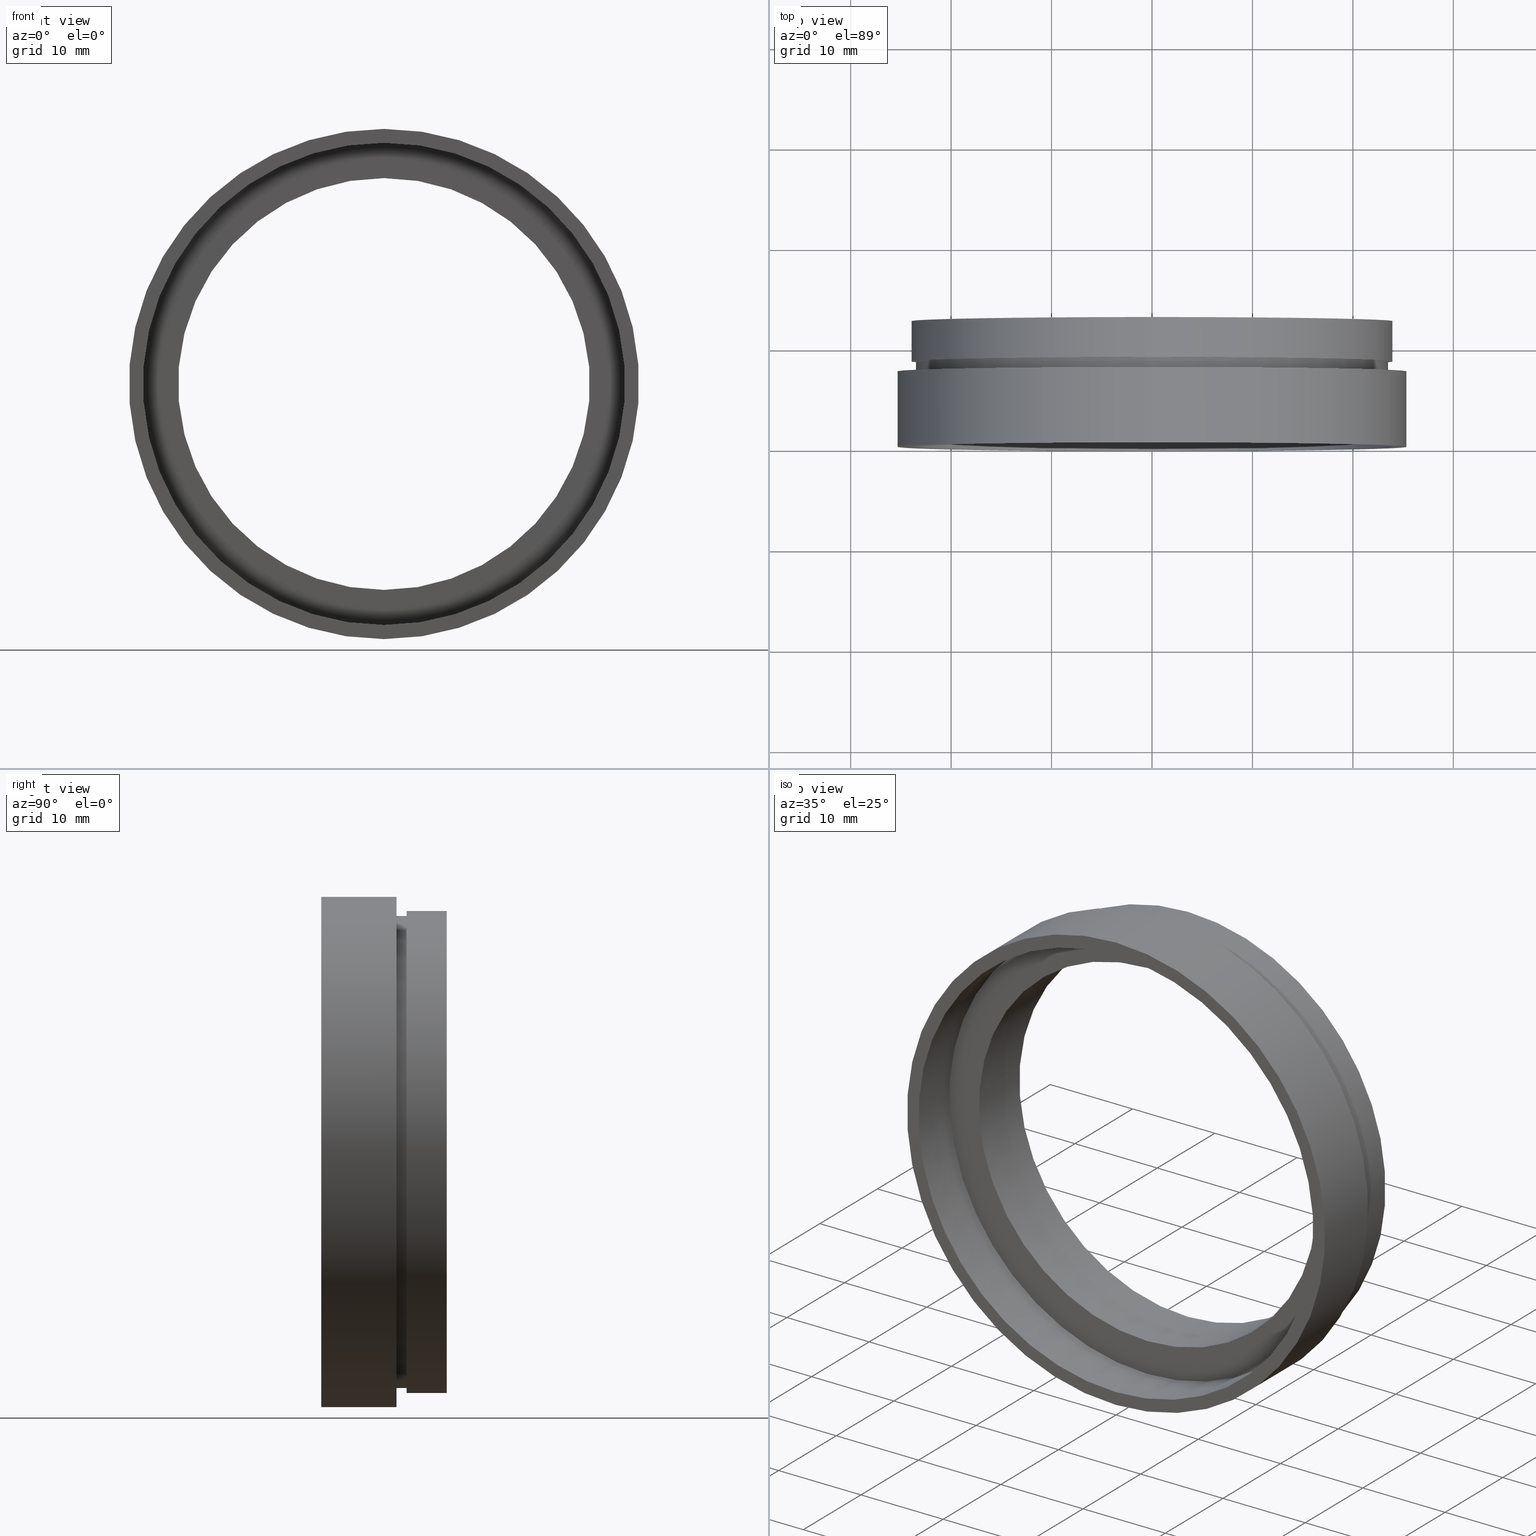
[diagram: canonical four-view strip — front | top / right | iso, engineering-drawing reading convention]
A machine part, canonical four-view strip (front | top / right | iso — engineering-drawing reading convention). The complete STEP part file that produces these views, byte-faithful:
ISO-10303-21;
HEADER;
FILE_DESCRIPTION (( 'STEP AP214' ),
    '1' );
FILE_NAME ('503016.STEP',
    '2019-09-05T01:53:03',
    ( '' ),
    ( '' ),
    'SwSTEP 2.0',
    'SolidWorks 2016',
    '' );
FILE_SCHEMA (( 'AUTOMOTIVE_DESIGN' ));
ENDSEC;

DATA;
#1 = AXIS2_PLACEMENT_3D ( 'NONE', #484, #488, #196 ) ;
#2 = VECTOR ( 'NONE', #34, 1000.000000000000000 ) ;
#3 = DIRECTION ( 'NONE',  ( -0.0000000000000000000, 1.000000000000000000, -0.0000000000000000000 ) ) ;
#4 = ORIENTED_EDGE ( 'NONE', *, *, #209, .T. ) ;
#5 = EDGE_CURVE ( 'NONE', #333, #324, #274, .T. ) ;
#6 = VERTEX_POINT ( 'NONE', #571 ) ;
#7 = UNCERTAINTY_MEASURE_WITH_UNIT (LENGTH_MEASURE( 1.000000000000000100E-005 ), #582, 'distance_accuracy_value', 'NONE');
#8 = CARTESIAN_POINT ( 'NONE',  ( 0.0000000000000000000, 161.3761669434274500, 0.0000000000000000000 ) ) ;
#9 = ADVANCED_FACE ( 'NONE', ( #176 ), #129, .F. ) ;
#10 = AXIS2_PLACEMENT_3D ( 'NONE', #85, #624, #92 ) ;
#11 = CARTESIAN_POINT ( 'NONE',  ( 0.0000000000000000000, 161.3761669434274500, 0.0000000000000000000 ) ) ;
#12 = CYLINDRICAL_SURFACE ( 'NONE', #417, 25.40000000000002000 ) ;
#13 = FACE_BOUND ( 'NONE', #192, .T. ) ;
#14 =( GEOMETRIC_REPRESENTATION_CONTEXT ( 3 ) GLOBAL_UNCERTAINTY_ASSIGNED_CONTEXT ( ( #45 ) ) GLOBAL_UNIT_ASSIGNED_CONTEXT ( ( #286, #194, #393 ) ) REPRESENTATION_CONTEXT ( 'NONE', 'WORKASPACE' ) );
#15 = EDGE_LOOP ( 'NONE', ( #389, #308, #542, #608 ) ) ;
#16 = DIRECTION ( 'NONE',  ( -0.0000000000000000000, 1.000000000000000000, -0.0000000000000000000 ) ) ;
#17 = CARTESIAN_POINT ( 'NONE',  ( 2.510525938252076100E-015, 161.3761669434274500, -20.50000000000001800 ) ) ;
#18 = UNCERTAINTY_MEASURE_WITH_UNIT (LENGTH_MEASURE( 1.000000000000000100E-005 ), #278, 'distance_accuracy_value', 'NONE');
#19 = ORIENTED_EDGE ( 'NONE', *, *, #384, .T. ) ;
#20 = DIRECTION ( 'NONE',  ( 0.0000000000000000000, 0.0000000000000000000, 1.000000000000000000 ) ) ;
#21 = CARTESIAN_POINT ( 'NONE',  ( 24.00000000000001800, 8.499999999999987600, 0.0000000000000000000 ) ) ;
#22 = DIRECTION ( 'NONE',  ( 0.0000000000000000000, 0.0000000000000000000, 1.000000000000000000 ) ) ;
#23 = AXIS2_PLACEMENT_3D ( 'NONE', #37, #411, #515 ) ;
#24 = DIRECTION ( 'NONE',  ( 0.0000000000000000000, 0.0000000000000000000, 1.000000000000000000 ) ) ;
#25 = SURFACE_STYLE_USAGE ( .BOTH. , #452 ) ;
#26 = CARTESIAN_POINT ( 'NONE',  ( 0.0000000000000000000, 4.499999999999976000, 0.0000000000000000000 ) ) ;
#27 = AXIS2_PLACEMENT_3D ( 'NONE', #107, #295, #584 ) ;
#28 = CIRCLE ( 'NONE', #232, 24.00000000000001800 ) ;
#29 = DIRECTION ( 'NONE',  ( -0.0000000000000000000, 1.000000000000000000, -0.0000000000000000000 ) ) ;
#30 = EDGE_LOOP ( 'NONE', ( #170, #242 ) ) ;
#31 = CARTESIAN_POINT ( 'NONE',  ( 0.0000000000000000000, 4.499999999999976000, 24.00000000000002100 ) ) ;
#32 = FACE_BOUND ( 'NONE', #467, .T. ) ;
#33 = COLOUR_RGB ( '',1.000000000000000000, 1.000000000000000000, 1.000000000000000000 ) ;
#34 = DIRECTION ( 'NONE',  ( -0.0000000000000000000, 1.000000000000000000, -0.0000000000000000000 ) ) ;
#35 = VERTEX_POINT ( 'NONE', #492 ) ;
#36 = AXIS2_PLACEMENT_3D ( 'NONE', #561, #172, #222 ) ;
#37 = CARTESIAN_POINT ( 'NONE',  ( 0.0000000000000000000, 5.499999999999976900, 0.0000000000000000000 ) ) ;
#38 = EDGE_LOOP ( 'NONE', ( #528, #179 ) ) ;
#39 = AXIS2_PLACEMENT_3D ( 'NONE', #360, #108, #97 ) ;
#40 = PLANE ( 'NONE',  #422 ) ;
#41 = FILL_AREA_STYLE_COLOUR ( '', #188 ) ;
#42 = FACE_OUTER_BOUND ( 'NONE', #355, .T. ) ;
#43 = ORIENTED_EDGE ( 'NONE', *, *, #55, .T. ) ;
#44 = ORIENTED_EDGE ( 'NONE', *, *, #580, .F. ) ;
#45 = UNCERTAINTY_MEASURE_WITH_UNIT (LENGTH_MEASURE( 1.000000000000000100E-005 ), #286, 'distance_accuracy_value', 'NONE');
#46 = PRESENTATION_LAYER_ASSIGNMENT (  '', '', ( #518 ) ) ;
#47 = FILL_AREA_STYLE ('',( #335 ) ) ;
#48 = SHAPE_DEFINITION_REPRESENTATION ( #554, #603 ) ;
#49 = ORIENTED_EDGE ( 'NONE', *, *, #479, .T. ) ;
#50 = ORIENTED_EDGE ( 'NONE', *, *, #203, .T. ) ;
#51 = ORIENTED_EDGE ( 'NONE', *, *, #110, .T. ) ;
#52 = FILL_AREA_STYLE_COLOUR ( '', #72 ) ;
#53 = STYLED_ITEM ( 'NONE', ( #266 ), #283 ) ;
#54 =( NAMED_UNIT ( * ) PLANE_ANGLE_UNIT ( ) SI_UNIT ( $, .RADIAN. ) );
#55 = EDGE_CURVE ( 'NONE', #406, #56, #81, .T. ) ;
#56 = VERTEX_POINT ( 'NONE', #593 ) ;
#57 = CARTESIAN_POINT ( 'NONE',  ( 0.0000000000000000000, 7.499999999999978700, 23.50000000000001800 ) ) ;
#58 = DIRECTION ( 'NONE',  ( -0.0000000000000000000, 1.000000000000000000, -0.0000000000000000000 ) ) ;
#59 = FILL_AREA_STYLE_COLOUR ( '', #463 ) ;
#60 = FACE_OUTER_BOUND ( 'NONE', #438, .T. ) ;
#61 = CARTESIAN_POINT ( 'NONE',  ( 0.0000000000000000000, 7.499999999999978700, 0.0000000000000000000 ) ) ;
#62 = CIRCLE ( 'NONE', #27, 23.50000000000001800 ) ;
#63 = CARTESIAN_POINT ( 'NONE',  ( 0.0000000000000000000, 8.499999999999980500, 0.0000000000000000000 ) ) ;
#64 = SURFACE_STYLE_USAGE ( .BOTH. , #200 ) ;
#65 = ORIENTED_EDGE ( 'NONE', *, *, #617, .F. ) ;
#66 = AXIS2_PLACEMENT_3D ( 'NONE', #270, #372, #410 ) ;
#67 = CARTESIAN_POINT ( 'NONE',  ( 0.0000000000000000000, 161.3761669434274500, 0.0000000000000000000 ) ) ;
#68 = ORIENTED_EDGE ( 'NONE', *, *, #248, .F. ) ;
#69 = CARTESIAN_POINT ( 'NONE',  ( 2.939152317953649900E-015, 161.3761669434274500, -24.00000000000001800 ) ) ;
#70 = AXIS2_PLACEMENT_3D ( 'NONE', #555, #405, #458 ) ;
#71 = CIRCLE ( 'NONE', #23, 24.10000000000001600 ) ;
#72 = COLOUR_RGB ( '',1.000000000000000000, 1.000000000000000000, 1.000000000000000000 ) ;
#73 = CARTESIAN_POINT ( 'NONE',  ( 0.0000000000000000000, 7.499999999999978700, 25.40000000000001600 ) ) ;
#74 = CARTESIAN_POINT ( 'NONE',  ( 0.0000000000000000000, 8.499999999999980500, 0.0000000000000000000 ) ) ;
#75 = DIRECTION ( 'NONE',  ( 0.0000000000000000000, 0.0000000000000000000, 1.000000000000000000 ) ) ;
#76 = ORIENTED_EDGE ( 'NONE', *, *, #479, .F. ) ;
#77 = AXIS2_PLACEMENT_3D ( 'NONE', #112, #391, #312 ) ;
#78 =( NAMED_UNIT ( * ) SI_UNIT ( $, .STERADIAN. ) SOLID_ANGLE_UNIT ( ) );
#79 = CARTESIAN_POINT ( 'NONE',  ( 0.0000000000000000000, 161.3761669434274500, 20.50000000000001800 ) ) ;
#80 = EDGE_CURVE ( 'NONE', #35, #473, #587, .T. ) ;
#81 = CIRCLE ( 'NONE', #177, 24.10000000000001600 ) ;
#82 = ADVANCED_FACE ( 'NONE', ( #88 ), #451, .F. ) ;
#83 = PRESENTATION_STYLE_ASSIGNMENT (( #180 ) ) ;
#84 = AXIS2_PLACEMENT_3D ( 'NONE', #125, #502, #313 ) ;
#85 = CARTESIAN_POINT ( 'NONE',  ( 0.0000000000000000000, 161.3761669434274500, 0.0000000000000000000 ) ) ;
#86 = CARTESIAN_POINT ( 'NONE',  ( 0.0000000000000000000, 161.3761669434274500, 0.0000000000000000000 ) ) ;
#87 = CARTESIAN_POINT ( 'NONE',  ( 23.50000000000001800, 7.499999999999985800, 0.0000000000000000000 ) ) ;
#88 = FACE_OUTER_BOUND ( 'NONE', #15, .T. ) ;
#89 =( NAMED_UNIT ( * ) SI_UNIT ( $, .STERADIAN. ) SOLID_ANGLE_UNIT ( ) );
#90 = ORIENTED_EDGE ( 'NONE', *, *, #184, .T. ) ;
#91 = EDGE_CURVE ( 'NONE', #457, #143, #596, .T. ) ;
#92 = DIRECTION ( 'NONE',  ( 0.0000000000000000000, 0.0000000000000000000, 1.000000000000000000 ) ) ;
#93 = VERTEX_POINT ( 'NONE', #303 ) ;
#94 = EDGE_LOOP ( 'NONE', ( #236, #237, #114, #287 ) ) ;
#95 = VERTEX_POINT ( 'NONE', #155 ) ;
#96 = MECHANICAL_DESIGN_GEOMETRIC_PRESENTATION_REPRESENTATION (  '', ( #337 ), #118 ) ;
#97 = DIRECTION ( 'NONE',  ( 0.0000000000000000000, 0.0000000000000000000, 1.000000000000000000 ) ) ;
#98 = LINE ( 'NONE', #322, #2 ) ;
#99 = ORIENTED_EDGE ( 'NONE', *, *, #91, .F. ) ;
#100 = AXIS2_PLACEMENT_3D ( 'NONE', #74, #401, #122 ) ;
#101 = AXIS2_PLACEMENT_3D ( 'NONE', #390, #588, #578 ) ;
#102 = CARTESIAN_POINT ( 'NONE',  ( 0.0000000000000000000, 4.499999999999976000, 0.0000000000000000000 ) ) ;
#103 = CYLINDRICAL_SURFACE ( 'NONE', #415, 23.50000000000001800 ) ;
#104 = CARTESIAN_POINT ( 'NONE',  ( 0.0000000000000000000, 5.499999999999976900, 0.0000000000000000000 ) ) ;
#105 =( LENGTH_UNIT ( ) NAMED_UNIT ( * ) SI_UNIT ( .MILLI., .METRE. ) );
#106 = ORIENTED_EDGE ( 'NONE', *, *, #240, .T. ) ;
#107 = CARTESIAN_POINT ( 'NONE',  ( 0.0000000000000000000, 7.499999999999978700, 0.0000000000000000000 ) ) ;
#108 = DIRECTION ( 'NONE',  ( -0.0000000000000000000, 1.000000000000000000, -0.0000000000000000000 ) ) ;
#109 = CARTESIAN_POINT ( 'NONE',  ( 2.510525938252076100E-015, 12.49999999999998400, -20.50000000000001800 ) ) ;
#110 = EDGE_CURVE ( 'NONE', #457, #356, #621, .T. ) ;
#111 = CARTESIAN_POINT ( 'NONE',  ( 0.0000000000000000000, 5.499999999999976900, 0.0000000000000000000 ) ) ;
#112 = CARTESIAN_POINT ( 'NONE',  ( 0.0000000000000000000, 161.3761669434274500, 0.0000000000000000000 ) ) ;
#113 = FACE_OUTER_BOUND ( 'NONE', #527, .T. ) ;
#114 = ORIENTED_EDGE ( 'NONE', *, *, #481, .T. ) ;
#115 = DIRECTION ( 'NONE',  ( -0.0000000000000000000, 1.000000000000000000, -0.0000000000000000000 ) ) ;
#116 = CARTESIAN_POINT ( 'NONE',  ( 0.0000000000000000000, 8.499999999999980500, 24.00000000000001800 ) ) ;
#117 = UNCERTAINTY_MEASURE_WITH_UNIT (LENGTH_MEASURE( 1.000000000000000100E-005 ), #277, 'distance_accuracy_value', 'NONE');
#118 =( GEOMETRIC_REPRESENTATION_CONTEXT ( 3 ) GLOBAL_UNCERTAINTY_ASSIGNED_CONTEXT ( ( #623 ) ) GLOBAL_UNIT_ASSIGNED_CONTEXT ( ( #475, #618, #189 ) ) REPRESENTATION_CONTEXT ( 'NONE', 'WORKASPACE' ) );
#119 = FILL_AREA_STYLE ('',( #604 ) ) ;
#120 = ORIENTED_EDGE ( 'NONE', *, *, #5, .T. ) ;
#121 = CARTESIAN_POINT ( 'NONE',  ( 2.877919977996282300E-015, 7.499999999999978700, -23.50000000000001800 ) ) ;
#122 = DIRECTION ( 'NONE',  ( 0.0000000000000000000, 0.0000000000000000000, 1.000000000000000000 ) ) ;
#123 = CARTESIAN_POINT ( 'NONE',  ( 0.0000000000000000000, 7.499999999999978700, 0.0000000000000000000 ) ) ;
#124 = EDGE_CURVE ( 'NONE', #35, #572, #190, .T. ) ;
#125 = CARTESIAN_POINT ( 'NONE',  ( 0.0000000000000000000, 161.3761669434274500, 0.0000000000000000000 ) ) ;
#126 = FACE_BOUND ( 'NONE', #387, .T. ) ;
#127 = ADVANCED_FACE ( 'NONE', ( #267, #13 ), #243, .F. ) ;
#128 = FILL_AREA_STYLE_COLOUR ( '', #361 ) ;
#129 = CYLINDRICAL_SURFACE ( 'NONE', #379, 24.10000000000001600 ) ;
#130 = DIRECTION ( 'NONE',  ( -0.0000000000000000000, 1.000000000000000000, -0.0000000000000000000 ) ) ;
#131 = EDGE_LOOP ( 'NONE', ( #106, #544 ) ) ;
#132 = DIRECTION ( 'NONE',  ( 0.0000000000000000000, 0.0000000000000000000, 1.000000000000000000 ) ) ;
#133 = UNCERTAINTY_MEASURE_WITH_UNIT (LENGTH_MEASURE( 1.000000000000000100E-005 ), #105, 'distance_accuracy_value', 'NONE');
#134 = ADVANCED_FACE ( 'NONE', ( #490 ), #526, .F. ) ;
#135 =( NAMED_UNIT ( * ) PLANE_ANGLE_UNIT ( ) SI_UNIT ( $, .RADIAN. ) );
#136 = CIRCLE ( 'NONE', #575, 25.40000000000001600 ) ;
#137 = VERTEX_POINT ( 'NONE', #585 ) ;
#138 = CARTESIAN_POINT ( 'NONE',  ( 20.50000000000001800, 12.49999999999998800, 0.0000000000000000000 ) ) ;
#139 = AXIS2_PLACEMENT_3D ( 'NONE', #111, #259, #442 ) ;
#140 = SURFACE_SIDE_STYLE ('',( #343 ) ) ;
#141 = SURFACE_STYLE_FILL_AREA ( #538 ) ;
#142 = ORIENTED_EDGE ( 'NONE', *, *, #275, .T. ) ;
#143 = VERTEX_POINT ( 'NONE', #269 ) ;
#144 = AXIS2_PLACEMENT_3D ( 'NONE', #61, #150, #153 ) ;
#145 = DIRECTION ( 'NONE',  ( 0.0000000000000000000, -1.000000000000000000, 0.0000000000000000000 ) ) ;
#146 = CARTESIAN_POINT ( 'NONE',  ( 0.0000000000000000000, 161.3761669434274500, 0.0000000000000000000 ) ) ;
#147 = EDGE_CURVE ( 'NONE', #333, #305, #489, .T. ) ;
#148 = STYLED_ITEM ( 'NONE', ( #229 ), #290 ) ;
#149 = DIRECTION ( 'NONE',  ( 0.0000000000000000000, 0.0000000000000000000, 1.000000000000000000 ) ) ;
#150 = DIRECTION ( 'NONE',  ( -0.0000000000000000000, 1.000000000000000000, -0.0000000000000000000 ) ) ;
#151 = SURFACE_STYLE_FILL_AREA ( #119 ) ;
#152 = MECHANICAL_DESIGN_GEOMETRIC_PRESENTATION_REPRESENTATION (  '', ( #291 ), #433 ) ;
#153 = DIRECTION ( 'NONE',  ( 0.0000000000000000000, 0.0000000000000000000, 1.000000000000000000 ) ) ;
#154 = UNCERTAINTY_MEASURE_WITH_UNIT (LENGTH_MEASURE( 1.000000000000000100E-005 ), #521, 'distance_accuracy_value', 'NONE');
#155 = CARTESIAN_POINT ( 'NONE',  ( 0.0000000000000000000, -2.775557561562891400E-014, 24.00000000000002100 ) ) ;
#156 = FACE_OUTER_BOUND ( 'NONE', #614, .T. ) ;
#157 = ORIENTED_EDGE ( 'NONE', *, *, #147, .F. ) ;
#158 = CARTESIAN_POINT ( 'NONE',  ( 0.0000000000000000000, 4.499999999999976000, 0.0000000000000000000 ) ) ;
#159 = PRODUCT_DEFINITION ( 'δ֪', '', #234, #419 ) ;
#160 = CARTESIAN_POINT ( 'NONE',  ( 2.877919977996282300E-015, 161.3761669434274500, -23.50000000000001800 ) ) ;
#161 = EDGE_LOOP ( 'NONE', ( #157, #120, #376, #257 ) ) ;
#162 = DIRECTION ( 'NONE',  ( 0.0000000000000000000, 0.0000000000000000000, 1.000000000000000000 ) ) ;
#163 = DIRECTION ( 'NONE',  ( -0.0000000000000000000, 1.000000000000000000, -0.0000000000000000000 ) ) ;
#164 = AXIS2_PLACEMENT_3D ( 'NONE', #63, #450, #396 ) ;
#165 = CARTESIAN_POINT ( 'NONE',  ( 0.0000000000000000000, 161.3761669434274500, 0.0000000000000000000 ) ) ;
#166 = DIRECTION ( 'NONE',  ( 0.0000000000000000000, 0.0000000000000000000, 1.000000000000000000 ) ) ;
#167 = LINE ( 'NONE', #216, #436 ) ;
#168 = CARTESIAN_POINT ( 'NONE',  ( 0.0000000000000000000, 161.3761669434274500, 23.50000000000001800 ) ) ;
#169 =( GEOMETRIC_REPRESENTATION_CONTEXT ( 3 ) GLOBAL_UNCERTAINTY_ASSIGNED_CONTEXT ( ( #117 ) ) GLOBAL_UNIT_ASSIGNED_CONTEXT ( ( #277, #135, #609 ) ) REPRESENTATION_CONTEXT ( 'NONE', 'WORKASPACE' ) );
#170 = ORIENTED_EDGE ( 'NONE', *, *, #263, .F. ) ;
#171 = ADVANCED_FACE ( 'NONE', ( #42 ), #12, .T. ) ;
#172 = DIRECTION ( 'NONE',  ( -0.0000000000000000000, 1.000000000000000000, -0.0000000000000000000 ) ) ;
#173 = EDGE_CURVE ( 'NONE', #409, #406, #167, .T. ) ;
#174 = FACE_BOUND ( 'NONE', #30, .T. ) ;
#175 = CIRCLE ( 'NONE', #494, 25.40000000000002000 ) ;
#176 = FACE_OUTER_BOUND ( 'NONE', #559, .T. ) ;
#177 = AXIS2_PLACEMENT_3D ( 'NONE', #353, #115, #210 ) ;
#178 = CARTESIAN_POINT ( 'NONE',  ( 24.10000000000001600, 5.499999999999985800, 0.0000000000000000000 ) ) ;
#179 = ORIENTED_EDGE ( 'NONE', *, *, #110, .F. ) ;
#180 = SURFACE_STYLE_USAGE ( .BOTH. , #140 ) ;
#181 =( GEOMETRIC_REPRESENTATION_CONTEXT ( 3 ) GLOBAL_UNCERTAINTY_ASSIGNED_CONTEXT ( ( #7 ) ) GLOBAL_UNIT_ASSIGNED_CONTEXT ( ( #582, #54, #299 ) ) REPRESENTATION_CONTEXT ( 'NONE', 'WORKASPACE' ) );
#182 = DIRECTION ( 'NONE',  ( 0.0000000000000000000, 0.0000000000000000000, 1.000000000000000000 ) ) ;
#183 = ADVANCED_FACE ( 'NONE', ( #156 ), #565, .T. ) ;
#184 = EDGE_CURVE ( 'NONE', #6, #305, #533, .T. ) ;
#185 = ORIENTED_EDGE ( 'NONE', *, *, #238, .F. ) ;
#186 = DIRECTION ( 'NONE',  ( 0.0000000000000000000, -0.0000000000000000000, -1.000000000000000000 ) ) ;
#187 =( NAMED_UNIT ( * ) PLANE_ANGLE_UNIT ( ) SI_UNIT ( $, .RADIAN. ) );
#188 = COLOUR_RGB ( '',1.000000000000000000, 1.000000000000000000, 1.000000000000000000 ) ;
#189 =( NAMED_UNIT ( * ) SI_UNIT ( $, .STERADIAN. ) SOLID_ANGLE_UNIT ( ) );
#190 = CIRCLE ( 'NONE', #139, 20.50000000000001800 ) ;
#191 = ORIENTED_EDGE ( 'NONE', *, *, #408, .T. ) ;
#192 = EDGE_LOOP ( 'NONE', ( #90, #50 ) ) ;
#193 = AXIS2_PLACEMENT_3D ( 'NONE', #102, #385, #24 ) ;
#194 =( NAMED_UNIT ( * ) PLANE_ANGLE_UNIT ( ) SI_UNIT ( $, .RADIAN. ) );
#195 = AXIS2_PLACEMENT_3D ( 'NONE', #552, #264, #602 ) ;
#196 = DIRECTION ( 'NONE',  ( 0.0000000000000000000, 0.0000000000000000000, 1.000000000000000000 ) ) ;
#197 = ORIENTED_EDGE ( 'NONE', *, *, #173, .F. ) ;
#198 = DIRECTION ( 'NONE',  ( 0.0000000000000000000, 0.0000000000000000000, 1.000000000000000000 ) ) ;
#199 =( GEOMETRIC_REPRESENTATION_CONTEXT ( 3 ) GLOBAL_UNCERTAINTY_ASSIGNED_CONTEXT ( ( #154 ) ) GLOBAL_UNIT_ASSIGNED_CONTEXT ( ( #521, #472, #233 ) ) REPRESENTATION_CONTEXT ( 'NONE', 'WORKASPACE' ) );
#200 = SURFACE_SIDE_STYLE ('',( #461 ) ) ;
#201 = FACE_OUTER_BOUND ( 'NONE', #161, .T. ) ;
#202 = VECTOR ( 'NONE', #3, 1000.000000000000000 ) ;
#203 = EDGE_CURVE ( 'NONE', #305, #6, #586, .T. ) ;
#204 = SURFACE_SIDE_STYLE ('',( #336 ) ) ;
#205 =( LENGTH_UNIT ( ) NAMED_UNIT ( * ) SI_UNIT ( .MILLI., .METRE. ) );
#206 = ORIENTED_EDGE ( 'NONE', *, *, #321, .T. ) ;
#207 = DIRECTION ( 'NONE',  ( 0.0000000000000000000, 0.0000000000000000000, 1.000000000000000000 ) ) ;
#208 = ORIENTED_EDGE ( 'NONE', *, *, #124, .T. ) ;
#209 = EDGE_CURVE ( 'NONE', #356, #457, #403, .T. ) ;
#210 = DIRECTION ( 'NONE',  ( 0.0000000000000000000, 0.0000000000000000000, 1.000000000000000000 ) ) ;
#211 = CARTESIAN_POINT ( 'NONE',  ( 0.0000000000000000000, -2.775557561562891400E-014, 0.0000000000000000000 ) ) ;
#212 = CYLINDRICAL_SURFACE ( 'NONE', #10, 20.50000000000001800 ) ;
#213 = FACE_OUTER_BOUND ( 'NONE', #325, .T. ) ;
#214 = DIRECTION ( 'NONE',  ( -0.0000000000000000000, 1.000000000000000000, -0.0000000000000000000 ) ) ;
#215 = MECHANICAL_DESIGN_GEOMETRIC_PRESENTATION_REPRESENTATION (  '', ( #476 ), #272 ) ;
#216 = CARTESIAN_POINT ( 'NONE',  ( 0.0000000000000000000, 161.3761669434274500, 24.10000000000001600 ) ) ;
#217 = ORIENTED_EDGE ( 'NONE', *, *, #510, .F. ) ;
#218 = CARTESIAN_POINT ( 'NONE',  ( 2.939152317953650300E-015, -2.775557561562891400E-014, -24.00000000000002100 ) ) ;
#219 = ORIENTED_EDGE ( 'NONE', *, *, #510, .T. ) ;
#220 = CARTESIAN_POINT ( 'NONE',  ( 3.110602869834279600E-015, 161.3761669434274500, -25.40000000000002000 ) ) ;
#221 = EDGE_CURVE ( 'NONE', #143, #281, #28, .T. ) ;
#222 = DIRECTION ( 'NONE',  ( 0.0000000000000000000, 0.0000000000000000000, 1.000000000000000000 ) ) ;
#223 = SURFACE_STYLE_FILL_AREA ( #226 ) ;
#224 = DIRECTION ( 'NONE',  ( -0.0000000000000000000, 1.000000000000000000, -0.0000000000000000000 ) ) ;
#225 = ORIENTED_EDGE ( 'NONE', *, *, #173, .T. ) ;
#226 = FILL_AREA_STYLE ('',( #128 ) ) ;
#227 = SURFACE_SIDE_STYLE ('',( #223 ) ) ;
#228 = MECHANICAL_DESIGN_GEOMETRIC_PRESENTATION_REPRESENTATION (  '', ( #53 ), #181 ) ;
#229 = PRESENTATION_STYLE_ASSIGNMENT (( #493 ) ) ;
#230 = CARTESIAN_POINT ( 'NONE',  ( 0.0000000000000000000, 12.49999999999998400, 20.50000000000001800 ) ) ;
#231 = VERTEX_POINT ( 'NONE', #455 ) ;
#232 = AXIS2_PLACEMENT_3D ( 'NONE', #530, #357, #354 ) ;
#233 =( NAMED_UNIT ( * ) SI_UNIT ( $, .STERADIAN. ) SOLID_ANGLE_UNIT ( ) );
#234 = PRODUCT_DEFINITION_FORMATION_WITH_SPECIFIED_SOURCE ( '�κ�', '', #583, .NOT_KNOWN. ) ;
#235 = VECTOR ( 'NONE', #58, 1000.000000000000000 ) ;
#236 = ORIENTED_EDGE ( 'NONE', *, *, #124, .F. ) ;
#237 = ORIENTED_EDGE ( 'NONE', *, *, #80, .T. ) ;
#238 = EDGE_CURVE ( 'NONE', #572, #35, #304, .T. ) ;
#239 = ORIENTED_EDGE ( 'NONE', *, *, #469, .T. ) ;
#240 = EDGE_CURVE ( 'NONE', #427, #137, #249, .T. ) ;
#241 = VECTOR ( 'NONE', #224, 1000.000000000000000 ) ;
#242 = ORIENTED_EDGE ( 'NONE', *, *, #5, .F. ) ;
#243 = PLANE ( 'NONE',  #331 ) ;
#244 = AXIS2_PLACEMENT_3D ( 'NONE', #453, #29, #314 ) ;
#245 = CARTESIAN_POINT ( 'NONE',  ( 0.0000000000000000000, 12.49999999999998400, 24.00000000000001800 ) ) ;
#246 = CARTESIAN_POINT ( 'NONE',  ( 2.939152317953650300E-015, 161.3761669434274500, -24.00000000000002100 ) ) ;
#247 = COLOUR_RGB ( '',1.000000000000000000, 1.000000000000000000, 1.000000000000000000 ) ;
#248 = EDGE_CURVE ( 'NONE', #471, #427, #520, .T. ) ;
#249 = CIRCLE ( 'NONE', #144, 25.40000000000001600 ) ;
#250 = ORIENTED_EDGE ( 'NONE', *, *, #607, .F. ) ;
#251 = ORIENTED_EDGE ( 'NONE', *, *, #279, .F. ) ;
#252 = FILL_AREA_STYLE ('',( #491 ) ) ;
#253 = SURFACE_SIDE_STYLE ('',( #294 ) ) ;
#254 = CYLINDRICAL_SURFACE ( 'NONE', #428, 25.40000000000002000 ) ;
#255 = PLANE ( 'NONE',  #534 ) ;
#256 = CYLINDRICAL_SURFACE ( 'NONE', #383, 24.00000000000001800 ) ;
#257 = ORIENTED_EDGE ( 'NONE', *, *, #203, .F. ) ;
#258 = PRESENTATION_LAYER_ASSIGNMENT (  '', '', ( #148 ) ) ;
#259 = DIRECTION ( 'NONE',  ( -0.0000000000000000000, 1.000000000000000000, -0.0000000000000000000 ) ) ;
#260 = DIRECTION ( 'NONE',  ( -0.0000000000000000000, 1.000000000000000000, -0.0000000000000000000 ) ) ;
#261 = FILL_AREA_STYLE ('',( #52 ) ) ;
#262 = DIRECTION ( 'NONE',  ( 0.0000000000000000000, -1.000000000000000000, 0.0000000000000000000 ) ) ;
#263 = EDGE_CURVE ( 'NONE', #324, #333, #62, .T. ) ;
#264 = DIRECTION ( 'NONE',  ( -0.0000000000000000000, 1.000000000000000000, -0.0000000000000000000 ) ) ;
#265 = CIRCLE ( 'NONE', #244, 24.00000000000002100 ) ;
#266 = PRESENTATION_STYLE_ASSIGNMENT (( #64 ) ) ;
#267 = FACE_OUTER_BOUND ( 'NONE', #38, .T. ) ;
#268 = PRESENTATION_LAYER_ASSIGNMENT (  '', '', ( #337 ) ) ;
#269 = CARTESIAN_POINT ( 'NONE',  ( 2.939152317953649900E-015, 12.49999999999998400, -24.00000000000001800 ) ) ;
#270 = CARTESIAN_POINT ( 'NONE',  ( 0.0000000000000000000, 4.499999999999976000, 0.0000000000000000000 ) ) ;
#271 = DIRECTION ( 'NONE',  ( -0.0000000000000000000, 1.000000000000000000, -0.0000000000000000000 ) ) ;
#272 =( GEOMETRIC_REPRESENTATION_CONTEXT ( 3 ) GLOBAL_UNCERTAINTY_ASSIGNED_CONTEXT ( ( #18 ) ) GLOBAL_UNIT_ASSIGNED_CONTEXT ( ( #278, #187, #89 ) ) REPRESENTATION_CONTEXT ( 'NONE', 'WORKASPACE' ) );
#273 = CIRCLE ( 'NONE', #101, 25.40000000000002000 ) ;
#274 = CIRCLE ( 'NONE', #395, 23.50000000000001800 ) ;
#275 = EDGE_CURVE ( 'NONE', #471, #93, #273, .T. ) ;
#276 = DIRECTION ( 'NONE',  ( 0.0000000000000000000, 0.0000000000000000000, 1.000000000000000000 ) ) ;
#277 =( LENGTH_UNIT ( ) NAMED_UNIT ( * ) SI_UNIT ( .MILLI., .METRE. ) );
#278 =( LENGTH_UNIT ( ) NAMED_UNIT ( * ) SI_UNIT ( .MILLI., .METRE. ) );
#279 = EDGE_CURVE ( 'NONE', #93, #471, #175, .T. ) ;
#280 = DIRECTION ( 'NONE',  ( 1.000000000000000000, 0.0000000000000000000, 0.0000000000000000000 ) ) ;
#281 = VERTEX_POINT ( 'NONE', #245 ) ;
#282 = APPLICATION_PROTOCOL_DEFINITION ( 'draft international standard', 'automotive_design', 1998, #421 ) ;
#283 = ADVANCED_FACE ( 'NONE', ( #418 ), #256, .T. ) ;
#284 = SURFACE_STYLE_USAGE ( .BOTH. , #569 ) ;
#285 = ORIENTED_EDGE ( 'NONE', *, *, #501, .F. ) ;
#286 =( LENGTH_UNIT ( ) NAMED_UNIT ( * ) SI_UNIT ( .MILLI., .METRE. ) );
#287 = ORIENTED_EDGE ( 'NONE', *, *, #595, .F. ) ;
#288 = PRODUCT_RELATED_PRODUCT_CATEGORY ( 'part', '', ( #583 ) ) ;
#289 = ORIENTED_EDGE ( 'NONE', *, *, #374, .F. ) ;
#290 = ADVANCED_FACE ( 'NONE', ( #532 ), #487, .F. ) ;
#291 = STYLED_ITEM ( 'NONE', ( #392 ), #82 ) ;
#292 = FACE_BOUND ( 'NONE', #327, .T. ) ;
#293 = DIRECTION ( 'NONE',  ( -0.0000000000000000000, 1.000000000000000000, -0.0000000000000000000 ) ) ;
#294 = SURFACE_STYLE_FILL_AREA ( #261 ) ;
#295 = DIRECTION ( 'NONE',  ( -0.0000000000000000000, 1.000000000000000000, -0.0000000000000000000 ) ) ;
#296 = CLOSED_SHELL ( 'NONE', ( #477, #290, #531, #328, #183, #619, #134, #574, #283, #127, #334, #622, #171, #431, #82, #371, #9, #517 ) ) ;
#297 = VERTEX_POINT ( 'NONE', #486 ) ;
#298 = MECHANICAL_DESIGN_GEOMETRIC_PRESENTATION_REPRESENTATION (  '', ( #148 ), #400 ) ;
#299 =( NAMED_UNIT ( * ) SI_UNIT ( $, .STERADIAN. ) SOLID_ANGLE_UNIT ( ) );
#300 = SURFACE_STYLE_USAGE ( .BOTH. , #253 ) ;
#301 = CARTESIAN_POINT ( 'NONE',  ( 0.0000000000000000000, -2.775557561562891400E-014, 0.0000000000000000000 ) ) ;
#302 = CIRCLE ( 'NONE', #66, 24.10000000000001600 ) ;
#303 = CARTESIAN_POINT ( 'NONE',  ( 3.110602869834279600E-015, -2.775557561562891400E-014, -25.40000000000002000 ) ) ;
#304 = CIRCLE ( 'NONE', #551, 20.50000000000001800 ) ;
#305 = VERTEX_POINT ( 'NONE', #348 ) ;
#306 = DIRECTION ( 'NONE',  ( -0.0000000000000000000, 1.000000000000000000, -0.0000000000000000000 ) ) ;
#307 = EDGE_LOOP ( 'NONE', ( #474, #19 ) ) ;
#308 = ORIENTED_EDGE ( 'NONE', *, *, #408, .F. ) ;
#309 = CARTESIAN_POINT ( 'NONE',  ( 2.939152317953649900E-015, 8.499999999999980500, -24.00000000000001800 ) ) ;
#310 = EDGE_CURVE ( 'NONE', #297, #512, #367, .T. ) ;
#311 =( NAMED_UNIT ( * ) SI_UNIT ( $, .STERADIAN. ) SOLID_ANGLE_UNIT ( ) );
#312 = DIRECTION ( 'NONE',  ( 0.0000000000000000000, 0.0000000000000000000, 1.000000000000000000 ) ) ;
#313 = DIRECTION ( 'NONE',  ( 0.0000000000000000000, 0.0000000000000000000, 1.000000000000000000 ) ) ;
#314 = DIRECTION ( 'NONE',  ( 0.0000000000000000000, 0.0000000000000000000, 1.000000000000000000 ) ) ;
#315 = CIRCLE ( 'NONE', #615, 24.00000000000002100 ) ;
#316 = AXIS2_PLACEMENT_3D ( 'NONE', #86, #271, #557 ) ;
#317 = CARTESIAN_POINT ( 'NONE',  ( 0.0000000000000000000, 4.499999999999976000, 24.10000000000001600 ) ) ;
#318 =( NAMED_UNIT ( * ) PLANE_ANGLE_UNIT ( ) SI_UNIT ( $, .RADIAN. ) );
#319 = ORIENTED_EDGE ( 'NONE', *, *, #342, .F. ) ;
#320 = DIRECTION ( 'NONE',  ( -0.0000000000000000000, 1.000000000000000000, -0.0000000000000000000 ) ) ;
#321 = EDGE_CURVE ( 'NONE', #413, #297, #386, .T. ) ;
#322 = CARTESIAN_POINT ( 'NONE',  ( 0.0000000000000000000, 161.3761669434274500, 24.00000000000001800 ) ) ;
#323 = CIRCLE ( 'NONE', #546, 24.10000000000001600 ) ;
#324 = VERTEX_POINT ( 'NONE', #57 ) ;
#325 = EDGE_LOOP ( 'NONE', ( #142, #239, #535, #68 ) ) ;
#326 = CARTESIAN_POINT ( 'NONE',  ( 0.0000000000000000000, 161.3761669434274500, 0.0000000000000000000 ) ) ;
#327 = EDGE_LOOP ( 'NONE', ( #191, #430 ) ) ;
#328 = ADVANCED_FACE ( 'NONE', ( #434 ), #103, .T. ) ;
#329 = CARTESIAN_POINT ( 'NONE',  ( 0.0000000000000000000, 12.49999999999998400, 0.0000000000000000000 ) ) ;
#330 = PLANE ( 'NONE',  #449 ) ;
#331 = AXIS2_PLACEMENT_3D ( 'NONE', #21, #432, #448 ) ;
#332 = PRODUCT_CONTEXT ( 'NONE', #421, 'mechanical' ) ;
#333 = VERTEX_POINT ( 'NONE', #121 ) ;
#334 = ADVANCED_FACE ( 'NONE', ( #201 ), #605, .T. ) ;
#335 = FILL_AREA_STYLE_COLOUR ( '', #597 ) ;
#336 = SURFACE_STYLE_FILL_AREA ( #541 ) ;
#337 = STYLED_ITEM ( 'NONE', ( #83 ), #603 ) ;
#338 = APPLICATION_CONTEXT ( 'automotive_design' ) ;
#339 = ORIENTED_EDGE ( 'NONE', *, *, #238, .T. ) ;
#340 = CARTESIAN_POINT ( 'NONE',  ( 0.0000000000000000000, 7.499999999999978700, 0.0000000000000000000 ) ) ;
#341 = DIRECTION ( 'NONE',  ( 0.0000000000000000000, 0.0000000000000000000, 1.000000000000000000 ) ) ;
#342 = EDGE_CURVE ( 'NONE', #512, #297, #498, .T. ) ;
#343 = SURFACE_STYLE_FILL_AREA ( #47 ) ;
#344 = VECTOR ( 'NONE', #394, 1000.000000000000000 ) ;
#345 = VECTOR ( 'NONE', #543, 1000.000000000000000 ) ;
#346 = PRESENTATION_LAYER_ASSIGNMENT (  '', '', ( #388 ) ) ;
#347 = ORIENTED_EDGE ( 'NONE', *, *, #374, .T. ) ;
#348 = CARTESIAN_POINT ( 'NONE',  ( 2.877919977996282300E-015, 8.499999999999980500, -23.50000000000001800 ) ) ;
#349 =( NAMED_UNIT ( * ) SI_UNIT ( $, .STERADIAN. ) SOLID_ANGLE_UNIT ( ) );
#350 = PRESENTATION_LAYER_ASSIGNMENT (  '', '', ( #291 ) ) ;
#351 = FACE_OUTER_BOUND ( 'NONE', #464, .T. ) ;
#352 = ORIENTED_EDGE ( 'NONE', *, *, #55, .F. ) ;
#353 = CARTESIAN_POINT ( 'NONE',  ( 0.0000000000000000000, 5.499999999999976900, 0.0000000000000000000 ) ) ;
#354 = DIRECTION ( 'NONE',  ( 0.0000000000000000000, 0.0000000000000000000, 1.000000000000000000 ) ) ;
#355 = EDGE_LOOP ( 'NONE', ( #540, #590, #560, #480 ) ) ;
#356 = VERTEX_POINT ( 'NONE', #116 ) ;
#357 = DIRECTION ( 'NONE',  ( -0.0000000000000000000, 1.000000000000000000, -0.0000000000000000000 ) ) ;
#358 = DIRECTION ( 'NONE',  ( 0.0000000000000000000, 0.0000000000000000000, 1.000000000000000000 ) ) ;
#359 = VECTOR ( 'NONE', #513, 1000.000000000000000 ) ;
#360 = CARTESIAN_POINT ( 'NONE',  ( 0.0000000000000000000, 161.3761669434274500, 0.0000000000000000000 ) ) ;
#361 = COLOUR_RGB ( '',1.000000000000000000, 1.000000000000000000, 1.000000000000000000 ) ;
#362 = DIRECTION ( 'NONE',  ( -0.0000000000000000000, 1.000000000000000000, -0.0000000000000000000 ) ) ;
#363 =( LENGTH_UNIT ( ) NAMED_UNIT ( * ) SI_UNIT ( .MILLI., .METRE. ) );
#364 =( GEOMETRIC_REPRESENTATION_CONTEXT ( 3 ) GLOBAL_UNCERTAINTY_ASSIGNED_CONTEXT ( ( #612 ) ) GLOBAL_UNIT_ASSIGNED_CONTEXT ( ( #363, #318, #78 ) ) REPRESENTATION_CONTEXT ( 'NONE', 'WORKASPACE' ) );
#365 = CARTESIAN_POINT ( 'NONE',  ( 25.40000000000002000, -1.433284307725800500E-014, 0.0000000000000000000 ) ) ;
#366 = DIRECTION ( 'NONE',  ( -0.0000000000000000000, 1.000000000000000000, -0.0000000000000000000 ) ) ;
#367 = CIRCLE ( 'NONE', #193, 24.00000000000002100 ) ;
#368 = VECTOR ( 'NONE', #306, 1000.000000000000000 ) ;
#369 = ORIENTED_EDGE ( 'NONE', *, *, #80, .F. ) ;
#370 = DIRECTION ( 'NONE',  ( -0.0000000000000000000, 1.000000000000000000, 0.0000000000000000000 ) ) ;
#371 = ADVANCED_FACE ( 'NONE', ( #126, #441 ), #404, .F. ) ;
#372 = DIRECTION ( 'NONE',  ( -0.0000000000000000000, 1.000000000000000000, -0.0000000000000000000 ) ) ;
#373 = PRESENTATION_STYLE_ASSIGNMENT (( #284 ) ) ;
#374 = EDGE_CURVE ( 'NONE', #231, #56, #460, .T. ) ;
#375 = DIRECTION ( 'NONE',  ( 0.0000000000000000000, 0.0000000000000000000, 1.000000000000000000 ) ) ;
#376 = ORIENTED_EDGE ( 'NONE', *, *, #454, .T. ) ;
#377 = AXIS2_PLACEMENT_3D ( 'NONE', #465, #459, #563 ) ;
#378 = DIRECTION ( 'NONE',  ( -0.0000000000000000000, 1.000000000000000000, -0.0000000000000000000 ) ) ;
#379 = AXIS2_PLACEMENT_3D ( 'NONE', #146, #423, #495 ) ;
#380 = UNCERTAINTY_MEASURE_WITH_UNIT (LENGTH_MEASURE( 1.000000000000000100E-005 ), #205, 'distance_accuracy_value', 'NONE');
#381 = ORIENTED_EDGE ( 'NONE', *, *, #595, .T. ) ;
#382 = EDGE_LOOP ( 'NONE', ( #412, #206, #553, #250 ) ) ;
#383 = AXIS2_PLACEMENT_3D ( 'NONE', #11, #16, #198 ) ;
#384 = EDGE_CURVE ( 'NONE', #231, #409, #323, .T. ) ;
#385 = DIRECTION ( 'NONE',  ( -0.0000000000000000000, 1.000000000000000000, -0.0000000000000000000 ) ) ;
#386 = LINE ( 'NONE', #246, #235 ) ;
#387 = EDGE_LOOP ( 'NONE', ( #319, #414 ) ) ;
#388 = STYLED_ITEM ( 'NONE', ( #576 ), #482 ) ;
#389 = ORIENTED_EDGE ( 'NONE', *, *, #321, .F. ) ;
#390 = CARTESIAN_POINT ( 'NONE',  ( 0.0000000000000000000, -2.775557561562891400E-014, 0.0000000000000000000 ) ) ;
#391 = DIRECTION ( 'NONE',  ( -0.0000000000000000000, 1.000000000000000000, -0.0000000000000000000 ) ) ;
#392 = PRESENTATION_STYLE_ASSIGNMENT (( #446 ) ) ;
#393 =( NAMED_UNIT ( * ) SI_UNIT ( $, .STERADIAN. ) SOLID_ANGLE_UNIT ( ) );
#394 = DIRECTION ( 'NONE',  ( -0.0000000000000000000, 1.000000000000000000, -0.0000000000000000000 ) ) ;
#395 = AXIS2_PLACEMENT_3D ( 'NONE', #340, #378, #341 ) ;
#396 = DIRECTION ( 'NONE',  ( 0.0000000000000000000, 0.0000000000000000000, 1.000000000000000000 ) ) ;
#397 = ORIENTED_EDGE ( 'NONE', *, *, #275, .F. ) ;
#398 = DIRECTION ( 'NONE',  ( -0.0000000000000000000, 1.000000000000000000, 0.0000000000000000000 ) ) ;
#399 = DIRECTION ( 'NONE',  ( -0.0000000000000000000, 1.000000000000000000, -0.0000000000000000000 ) ) ;
#400 =( GEOMETRIC_REPRESENTATION_CONTEXT ( 3 ) GLOBAL_UNCERTAINTY_ASSIGNED_CONTEXT ( ( #380 ) ) GLOBAL_UNIT_ASSIGNED_CONTEXT ( ( #205, #539, #349 ) ) REPRESENTATION_CONTEXT ( 'NONE', 'WORKASPACE' ) );
#401 = DIRECTION ( 'NONE',  ( -0.0000000000000000000, 1.000000000000000000, -0.0000000000000000000 ) ) ;
#402 = CIRCLE ( 'NONE', #377, 24.00000000000001800 ) ;
#403 = CIRCLE ( 'NONE', #195, 24.00000000000001800 ) ;
#404 = PLANE ( 'NONE',  #525 ) ;
#405 = DIRECTION ( 'NONE',  ( -0.0000000000000000000, 1.000000000000000000, -0.0000000000000000000 ) ) ;
#406 = VERTEX_POINT ( 'NONE', #496 ) ;
#407 = DIRECTION ( 'NONE',  ( 0.0000000000000000000, -1.000000000000000000, 0.0000000000000000000 ) ) ;
#408 = EDGE_CURVE ( 'NONE', #95, #413, #265, .T. ) ;
#409 = VERTEX_POINT ( 'NONE', #317 ) ;
#410 = DIRECTION ( 'NONE',  ( 0.0000000000000000000, 0.0000000000000000000, 1.000000000000000000 ) ) ;
#411 = DIRECTION ( 'NONE',  ( -0.0000000000000000000, 1.000000000000000000, -0.0000000000000000000 ) ) ;
#412 = ORIENTED_EDGE ( 'NONE', *, *, #445, .F. ) ;
#413 = VERTEX_POINT ( 'NONE', #218 ) ;
#414 = ORIENTED_EDGE ( 'NONE', *, *, #310, .F. ) ;
#415 = AXIS2_PLACEMENT_3D ( 'NONE', #8, #447, #22 ) ;
#416 = FACE_BOUND ( 'NONE', #516, .T. ) ;
#417 = AXIS2_PLACEMENT_3D ( 'NONE', #165, #504, #507 ) ;
#418 = FACE_OUTER_BOUND ( 'NONE', #579, .T. ) ;
#419 = PRODUCT_DEFINITION_CONTEXT ( 'detailed design', #338, 'design' ) ;
#420 = ORIENTED_EDGE ( 'NONE', *, *, #501, .T. ) ;
#421 = APPLICATION_CONTEXT ( 'automotive_design' ) ;
#422 = AXIS2_PLACEMENT_3D ( 'NONE', #138, #407, #514 ) ;
#423 = DIRECTION ( 'NONE',  ( -0.0000000000000000000, 1.000000000000000000, -0.0000000000000000000 ) ) ;
#424 = FILL_AREA_STYLE ('',( #41 ) ) ;
#425 = LINE ( 'NONE', #462, #241 ) ;
#426 = PRESENTATION_STYLE_ASSIGNMENT (( #25 ) ) ;
#427 = VERTEX_POINT ( 'NONE', #73 ) ;
#428 = AXIS2_PLACEMENT_3D ( 'NONE', #326, #610, #375 ) ;
#429 = ORIENTED_EDGE ( 'NONE', *, *, #147, .T. ) ;
#430 = ORIENTED_EDGE ( 'NONE', *, *, #445, .T. ) ;
#431 = ADVANCED_FACE ( 'NONE', ( #113, #292 ), #255, .F. ) ;
#432 = DIRECTION ( 'NONE',  ( -0.0000000000000000000, 1.000000000000000000, 0.0000000000000000000 ) ) ;
#433 =( GEOMETRIC_REPRESENTATION_CONTEXT ( 3 ) GLOBAL_UNCERTAINTY_ASSIGNED_CONTEXT ( ( #133 ) ) GLOBAL_UNIT_ASSIGNED_CONTEXT ( ( #105, #547, #311 ) ) REPRESENTATION_CONTEXT ( 'NONE', 'WORKASPACE' ) );
#434 = FACE_OUTER_BOUND ( 'NONE', #499, .T. ) ;
#435 = FILL_AREA_STYLE_COLOUR ( '', #247 ) ;
#436 = VECTOR ( 'NONE', #399, 1000.000000000000000 ) ;
#437 = AXIS2_PLACEMENT_3D ( 'NONE', #329, #130, #132 ) ;
#438 = EDGE_LOOP ( 'NONE', ( #49, #570 ) ) ;
#439 = EDGE_CURVE ( 'NONE', #137, #427, #136, .T. ) ;
#440 = DIRECTION ( 'NONE',  ( -0.0000000000000000000, 1.000000000000000000, -0.0000000000000000000 ) ) ;
#441 = FACE_OUTER_BOUND ( 'NONE', #307, .T. ) ;
#442 = DIRECTION ( 'NONE',  ( 0.0000000000000000000, 0.0000000000000000000, 1.000000000000000000 ) ) ;
#443 = COLOUR_RGB ( '',1.000000000000000000, 1.000000000000000000, 1.000000000000000000 ) ;
#444 = SURFACE_SIDE_STYLE ('',( #141 ) ) ;
#445 = EDGE_CURVE ( 'NONE', #413, #95, #315, .T. ) ;
#446 = SURFACE_STYLE_USAGE ( .BOTH. , #204 ) ;
#447 = DIRECTION ( 'NONE',  ( -0.0000000000000000000, 1.000000000000000000, -0.0000000000000000000 ) ) ;
#448 = DIRECTION ( 'NONE',  ( 0.0000000000000000000, 0.0000000000000000000, 1.000000000000000000 ) ) ;
#449 = AXIS2_PLACEMENT_3D ( 'NONE', #178, #370, #276 ) ;
#450 = DIRECTION ( 'NONE',  ( -0.0000000000000000000, 1.000000000000000000, -0.0000000000000000000 ) ) ;
#451 = CYLINDRICAL_SURFACE ( 'NONE', #537, 24.00000000000002100 ) ;
#452 = SURFACE_SIDE_STYLE ('',( #151 ) ) ;
#453 = CARTESIAN_POINT ( 'NONE',  ( 0.0000000000000000000, -2.775557561562891400E-014, 0.0000000000000000000 ) ) ;
#454 = EDGE_CURVE ( 'NONE', #324, #6, #505, .T. ) ;
#455 = CARTESIAN_POINT ( 'NONE',  ( 2.951398785945123200E-015, 4.499999999999976000, -24.10000000000001600 ) ) ;
#456 = ORIENTED_EDGE ( 'NONE', *, *, #184, .F. ) ;
#457 = VERTEX_POINT ( 'NONE', #309 ) ;
#458 = DIRECTION ( 'NONE',  ( 0.0000000000000000000, 0.0000000000000000000, 1.000000000000000000 ) ) ;
#459 = DIRECTION ( 'NONE',  ( -0.0000000000000000000, 1.000000000000000000, -0.0000000000000000000 ) ) ;
#460 = LINE ( 'NONE', #548, #549 ) ;
#461 = SURFACE_STYLE_FILL_AREA ( #252 ) ;
#462 = CARTESIAN_POINT ( 'NONE',  ( 0.0000000000000000000, 161.3761669434274500, 24.00000000000002100 ) ) ;
#463 = COLOUR_RGB ( '',1.000000000000000000, 1.000000000000000000, 1.000000000000000000 ) ;
#464 = EDGE_LOOP ( 'NONE', ( #508, #347, #420, #197 ) ) ;
#465 = CARTESIAN_POINT ( 'NONE',  ( 0.0000000000000000000, 12.49999999999998400, 0.0000000000000000000 ) ) ;
#466 = AXIS2_PLACEMENT_3D ( 'NONE', #158, #550, #166 ) ;
#467 = EDGE_LOOP ( 'NONE', ( #217, #522 ) ) ;
#468 = SURFACE_STYLE_USAGE ( .BOTH. , #227 ) ;
#469 = EDGE_CURVE ( 'NONE', #93, #137, #478, .T. ) ;
#470 = FACE_OUTER_BOUND ( 'NONE', #131, .T. ) ;
#471 = VERTEX_POINT ( 'NONE', #545 ) ;
#472 =( NAMED_UNIT ( * ) PLANE_ANGLE_UNIT ( ) SI_UNIT ( $, .RADIAN. ) );
#473 = VERTEX_POINT ( 'NONE', #109 ) ;
#474 = ORIENTED_EDGE ( 'NONE', *, *, #580, .T. ) ;
#475 =( LENGTH_UNIT ( ) NAMED_UNIT ( * ) SI_UNIT ( .MILLI., .METRE. ) );
#476 = STYLED_ITEM ( 'NONE', ( #373 ), #619 ) ;
#477 = ADVANCED_FACE ( 'NONE', ( #351 ), #620, .F. ) ;
#478 = LINE ( 'NONE', #220, #613 ) ;
#479 = EDGE_CURVE ( 'NONE', #281, #143, #402, .T. ) ;
#480 = ORIENTED_EDGE ( 'NONE', *, *, #439, .F. ) ;
#481 = EDGE_CURVE ( 'NONE', #473, #573, #564, .T. ) ;
#482 = MANIFOLD_SOLID_BREP ( '��ת1', #296 ) ;
#483 = CIRCLE ( 'NONE', #36, 20.50000000000001800 ) ;
#484 = CARTESIAN_POINT ( 'NONE',  ( 0.0000000000000000000, 161.3761669434274500, 0.0000000000000000000 ) ) ;
#485 = PRESENTATION_LAYER_ASSIGNMENT (  '', '', ( #568 ) ) ;
#486 = CARTESIAN_POINT ( 'NONE',  ( 2.939152317953650300E-015, 4.499999999999976000, -24.00000000000002100 ) ) ;
#487 = CYLINDRICAL_SURFACE ( 'NONE', #1, 24.00000000000002100 ) ;
#488 = DIRECTION ( 'NONE',  ( -0.0000000000000000000, 1.000000000000000000, -0.0000000000000000000 ) ) ;
#489 = LINE ( 'NONE', #160, #606 ) ;
#490 = FACE_OUTER_BOUND ( 'NONE', #556, .T. ) ;
#491 = FILL_AREA_STYLE_COLOUR ( '', #33 ) ;
#492 = CARTESIAN_POINT ( 'NONE',  ( 2.510525938252076100E-015, 5.499999999999976900, -20.50000000000001800 ) ) ;
#493 = SURFACE_STYLE_USAGE ( .BOTH. , #444 ) ;
#494 = AXIS2_PLACEMENT_3D ( 'NONE', #301, #293, #149 ) ;
#495 = DIRECTION ( 'NONE',  ( 0.0000000000000000000, 0.0000000000000000000, 1.000000000000000000 ) ) ;
#496 = CARTESIAN_POINT ( 'NONE',  ( 0.0000000000000000000, 5.499999999999976900, 24.10000000000001600 ) ) ;
#497 = LINE ( 'NONE', #79, #359 ) ;
#498 = CIRCLE ( 'NONE', #466, 24.00000000000002100 ) ;
#499 = EDGE_LOOP ( 'NONE', ( #600, #429, #456, #589 ) ) ;
#500 = DIRECTION ( 'NONE',  ( 0.0000000000000000000, -0.0000000000000000000, -1.000000000000000000 ) ) ;
#501 = EDGE_CURVE ( 'NONE', #56, #406, #71, .T. ) ;
#502 = DIRECTION ( 'NONE',  ( -0.0000000000000000000, 1.000000000000000000, -0.0000000000000000000 ) ) ;
#503 = PRESENTATION_LAYER_ASSIGNMENT (  '', '', ( #53 ) ) ;
#504 = DIRECTION ( 'NONE',  ( -0.0000000000000000000, 1.000000000000000000, -0.0000000000000000000 ) ) ;
#505 = LINE ( 'NONE', #168, #344 ) ;
#506 = PRESENTATION_STYLE_ASSIGNMENT (( #300 ) ) ;
#507 = DIRECTION ( 'NONE',  ( 0.0000000000000000000, 0.0000000000000000000, 1.000000000000000000 ) ) ;
#508 = ORIENTED_EDGE ( 'NONE', *, *, #384, .F. ) ;
#509 = CARTESIAN_POINT ( 'NONE',  ( 0.0000000000000000000, 5.499999999999976900, 20.50000000000001800 ) ) ;
#510 = EDGE_CURVE ( 'NONE', #573, #473, #483, .T. ) ;
#511 = ORIENTED_EDGE ( 'NONE', *, *, #91, .T. ) ;
#512 = VERTEX_POINT ( 'NONE', #31 ) ;
#513 = DIRECTION ( 'NONE',  ( -0.0000000000000000000, 1.000000000000000000, -0.0000000000000000000 ) ) ;
#514 = DIRECTION ( 'NONE',  ( 0.0000000000000000000, -0.0000000000000000000, -1.000000000000000000 ) ) ;
#515 = DIRECTION ( 'NONE',  ( 0.0000000000000000000, 0.0000000000000000000, 1.000000000000000000 ) ) ;
#516 = EDGE_LOOP ( 'NONE', ( #339, #208 ) ) ;
#517 = ADVANCED_FACE ( 'NONE', ( #519, #416 ), #330, .F. ) ;
#518 = STYLED_ITEM ( 'NONE', ( #426 ), #183 ) ;
#519 = FACE_OUTER_BOUND ( 'NONE', #577, .T. ) ;
#520 = LINE ( 'NONE', #536, #368 ) ;
#521 =( LENGTH_UNIT ( ) NAMED_UNIT ( * ) SI_UNIT ( .MILLI., .METRE. ) );
#522 = ORIENTED_EDGE ( 'NONE', *, *, #481, .F. ) ;
#523 = PLANE ( 'NONE',  #558 ) ;
#524 = SURFACE_STYLE_FILL_AREA ( #424 ) ;
#525 = AXIS2_PLACEMENT_3D ( 'NONE', #594, #262, #500 ) ;
#526 = CYLINDRICAL_SURFACE ( 'NONE', #39, 20.50000000000001800 ) ;
#527 = EDGE_LOOP ( 'NONE', ( #397, #251 ) ) ;
#528 = ORIENTED_EDGE ( 'NONE', *, *, #209, .F. ) ;
#529 = MECHANICAL_DESIGN_GEOMETRIC_PRESENTATION_REPRESENTATION (  '', ( #518 ), #364 ) ;
#530 = CARTESIAN_POINT ( 'NONE',  ( 0.0000000000000000000, 12.49999999999998400, 0.0000000000000000000 ) ) ;
#531 = ADVANCED_FACE ( 'NONE', ( #213 ), #254, .T. ) ;
#532 = FACE_OUTER_BOUND ( 'NONE', #382, .T. ) ;
#533 = CIRCLE ( 'NONE', #70, 23.50000000000001800 ) ;
#534 = AXIS2_PLACEMENT_3D ( 'NONE', #365, #398, #162 ) ;
#535 = ORIENTED_EDGE ( 'NONE', *, *, #240, .F. ) ;
#536 = CARTESIAN_POINT ( 'NONE',  ( 0.0000000000000000000, 161.3761669434274500, 25.40000000000002000 ) ) ;
#537 = AXIS2_PLACEMENT_3D ( 'NONE', #67, #163, #207 ) ;
#538 = FILL_AREA_STYLE ('',( #435 ) ) ;
#539 =( NAMED_UNIT ( * ) PLANE_ANGLE_UNIT ( ) SI_UNIT ( $, .RADIAN. ) );
#540 = ORIENTED_EDGE ( 'NONE', *, *, #469, .F. ) ;
#541 = FILL_AREA_STYLE ('',( #59 ) ) ;
#542 = ORIENTED_EDGE ( 'NONE', *, *, #607, .T. ) ;
#543 = DIRECTION ( 'NONE',  ( -0.0000000000000000000, 1.000000000000000000, -0.0000000000000000000 ) ) ;
#544 = ORIENTED_EDGE ( 'NONE', *, *, #439, .T. ) ;
#545 = CARTESIAN_POINT ( 'NONE',  ( 0.0000000000000000000, -2.775557561562891400E-014, 25.40000000000002000 ) ) ;
#546 = AXIS2_PLACEMENT_3D ( 'NONE', #26, #362, #20 ) ;
#547 =( NAMED_UNIT ( * ) PLANE_ANGLE_UNIT ( ) SI_UNIT ( $, .RADIAN. ) );
#548 = CARTESIAN_POINT ( 'NONE',  ( 2.951398785945123200E-015, 161.3761669434274500, -24.10000000000001600 ) ) ;
#549 = VECTOR ( 'NONE', #598, 1000.000000000000000 ) ;
#550 = DIRECTION ( 'NONE',  ( -0.0000000000000000000, 1.000000000000000000, -0.0000000000000000000 ) ) ;
#551 = AXIS2_PLACEMENT_3D ( 'NONE', #104, #440, #591 ) ;
#552 = CARTESIAN_POINT ( 'NONE',  ( 0.0000000000000000000, 8.499999999999980500, 0.0000000000000000000 ) ) ;
#553 = ORIENTED_EDGE ( 'NONE', *, *, #310, .T. ) ;
#554 = PRODUCT_DEFINITION_SHAPE ( 'NONE', 'NONE',  #159 ) ;
#555 = CARTESIAN_POINT ( 'NONE',  ( 0.0000000000000000000, 8.499999999999980500, 0.0000000000000000000 ) ) ;
#556 = EDGE_LOOP ( 'NONE', ( #369, #185, #381, #219 ) ) ;
#557 = DIRECTION ( 'NONE',  ( 0.0000000000000000000, 0.0000000000000000000, 1.000000000000000000 ) ) ;
#558 = AXIS2_PLACEMENT_3D ( 'NONE', #87, #145, #186 ) ;
#559 = EDGE_LOOP ( 'NONE', ( #289, #44, #225, #43 ) ) ;
#560 = ORIENTED_EDGE ( 'NONE', *, *, #248, .T. ) ;
#561 = CARTESIAN_POINT ( 'NONE',  ( 0.0000000000000000000, 12.49999999999998400, 0.0000000000000000000 ) ) ;
#562 = MECHANICAL_DESIGN_GEOMETRIC_PRESENTATION_REPRESENTATION (  '', ( #568 ), #14 ) ;
#563 = DIRECTION ( 'NONE',  ( 0.0000000000000000000, 0.0000000000000000000, 1.000000000000000000 ) ) ;
#564 = CIRCLE ( 'NONE', #437, 20.50000000000001800 ) ;
#565 = CYLINDRICAL_SURFACE ( 'NONE', #84, 24.00000000000001800 ) ;
#566 = CARTESIAN_POINT ( 'NONE',  ( 0.0000000000000000000, 0.0000000000000000000, 0.0000000000000000000 ) ) ;
#567 = PRESENTATION_LAYER_ASSIGNMENT (  '', '', ( #476 ) ) ;
#568 = STYLED_ITEM ( 'NONE', ( #506 ), #134 ) ;
#569 = SURFACE_SIDE_STYLE ('',( #524 ) ) ;
#570 = ORIENTED_EDGE ( 'NONE', *, *, #221, .T. ) ;
#571 = CARTESIAN_POINT ( 'NONE',  ( 0.0000000000000000000, 8.499999999999980500, 23.50000000000001800 ) ) ;
#572 = VERTEX_POINT ( 'NONE', #509 ) ;
#573 = VERTEX_POINT ( 'NONE', #230 ) ;
#574 = ADVANCED_FACE ( 'NONE', ( #32, #60 ), #40, .F. ) ;
#575 = AXIS2_PLACEMENT_3D ( 'NONE', #123, #214, #358 ) ;
#576 = PRESENTATION_STYLE_ASSIGNMENT (( #468 ) ) ;
#577 = EDGE_LOOP ( 'NONE', ( #352, #285 ) ) ;
#578 = DIRECTION ( 'NONE',  ( 0.0000000000000000000, 0.0000000000000000000, 1.000000000000000000 ) ) ;
#579 = EDGE_LOOP ( 'NONE', ( #99, #51, #581, #599 ) ) ;
#580 = EDGE_CURVE ( 'NONE', #409, #231, #302, .T. ) ;
#581 = ORIENTED_EDGE ( 'NONE', *, *, #617, .T. ) ;
#582 =( LENGTH_UNIT ( ) NAMED_UNIT ( * ) SI_UNIT ( .MILLI., .METRE. ) );
#583 = PRODUCT ( '503016', '503016', '', ( #332 ) ) ;
#584 = DIRECTION ( 'NONE',  ( 0.0000000000000000000, 0.0000000000000000000, 1.000000000000000000 ) ) ;
#585 = CARTESIAN_POINT ( 'NONE',  ( 3.110602869834279200E-015, 7.499999999999978700, -25.40000000000001600 ) ) ;
#586 = CIRCLE ( 'NONE', #100, 23.50000000000001800 ) ;
#587 = LINE ( 'NONE', #17, #202 ) ;
#588 = DIRECTION ( 'NONE',  ( -0.0000000000000000000, 1.000000000000000000, -0.0000000000000000000 ) ) ;
#589 = ORIENTED_EDGE ( 'NONE', *, *, #454, .F. ) ;
#590 = ORIENTED_EDGE ( 'NONE', *, *, #279, .T. ) ;
#591 = DIRECTION ( 'NONE',  ( 0.0000000000000000000, 0.0000000000000000000, 1.000000000000000000 ) ) ;
#592 = MECHANICAL_DESIGN_GEOMETRIC_PRESENTATION_REPRESENTATION (  '', ( #388 ), #169 ) ;
#593 = CARTESIAN_POINT ( 'NONE',  ( 2.951398785945123200E-015, 5.499999999999976900, -24.10000000000001600 ) ) ;
#594 = CARTESIAN_POINT ( 'NONE',  ( 24.00000000000002100, 4.499999999999986700, 0.0000000000000000000 ) ) ;
#595 = EDGE_CURVE ( 'NONE', #572, #573, #497, .T. ) ;
#596 = LINE ( 'NONE', #69, #345 ) ;
#597 = COLOUR_RGB ( '',1.000000000000000000, 1.000000000000000000, 1.000000000000000000 ) ;
#598 = DIRECTION ( 'NONE',  ( -0.0000000000000000000, 1.000000000000000000, -0.0000000000000000000 ) ) ;
#599 = ORIENTED_EDGE ( 'NONE', *, *, #221, .F. ) ;
#600 = ORIENTED_EDGE ( 'NONE', *, *, #263, .T. ) ;
#601 = AXIS2_PLACEMENT_3D ( 'NONE', #566, #182, #280 ) ;
#602 = DIRECTION ( 'NONE',  ( 0.0000000000000000000, 0.0000000000000000000, 1.000000000000000000 ) ) ;
#603 = ADVANCED_BREP_SHAPE_REPRESENTATION ( '503016', ( #482, #601 ), #199 ) ;
#604 = FILL_AREA_STYLE_COLOUR ( '', #443 ) ;
#605 = CYLINDRICAL_SURFACE ( 'NONE', #77, 23.50000000000001800 ) ;
#606 = VECTOR ( 'NONE', #366, 1000.000000000000000 ) ;
#607 = EDGE_CURVE ( 'NONE', #95, #512, #425, .T. ) ;
#608 = ORIENTED_EDGE ( 'NONE', *, *, #342, .T. ) ;
#609 =( NAMED_UNIT ( * ) SI_UNIT ( $, .STERADIAN. ) SOLID_ANGLE_UNIT ( ) );
#610 = DIRECTION ( 'NONE',  ( -0.0000000000000000000, 1.000000000000000000, -0.0000000000000000000 ) ) ;
#611 = FACE_OUTER_BOUND ( 'NONE', #94, .T. ) ;
#612 = UNCERTAINTY_MEASURE_WITH_UNIT (LENGTH_MEASURE( 1.000000000000000100E-005 ), #363, 'distance_accuracy_value', 'NONE');
#613 = VECTOR ( 'NONE', #260, 1000.000000000000000 ) ;
#614 = EDGE_LOOP ( 'NONE', ( #4, #511, #76, #65 ) ) ;
#615 = AXIS2_PLACEMENT_3D ( 'NONE', #211, #320, #75 ) ;
#616 = APPLICATION_PROTOCOL_DEFINITION ( 'draft international standard', 'automotive_design', 1998, #338 ) ;
#617 = EDGE_CURVE ( 'NONE', #356, #281, #98, .T. ) ;
#618 =( NAMED_UNIT ( * ) PLANE_ANGLE_UNIT ( ) SI_UNIT ( $, .RADIAN. ) );
#619 = ADVANCED_FACE ( 'NONE', ( #611 ), #212, .F. ) ;
#620 = CYLINDRICAL_SURFACE ( 'NONE', #316, 24.10000000000001600 ) ;
#621 = CIRCLE ( 'NONE', #164, 24.00000000000001800 ) ;
#622 = ADVANCED_FACE ( 'NONE', ( #174, #470 ), #523, .F. ) ;
#623 = UNCERTAINTY_MEASURE_WITH_UNIT (LENGTH_MEASURE( 1.000000000000000100E-005 ), #475, 'distance_accuracy_value', 'NONE');
#624 = DIRECTION ( 'NONE',  ( -0.0000000000000000000, 1.000000000000000000, -0.0000000000000000000 ) ) ;
ENDSEC;
END-ISO-10303-21;
